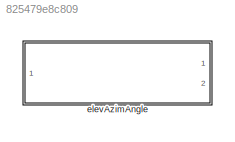
MODEL slx_825479e8c809
KIND library
CONFIG AbsTol = auto
CONFIG EnableMultiTasking = off
CONFIG FixedStep = auto
CONFIG MaxStep = auto
CONFIG MinStep = auto
CONFIG RelTol = 1e-3
CONFIG SampleTimeConstraint = Unconstrained
CONFIG Solver = VariableStepAuto
CONFIG SolverName = VariableStepAuto
CONFIG StartTime = 0.0
CONFIG StopTime = 10.0
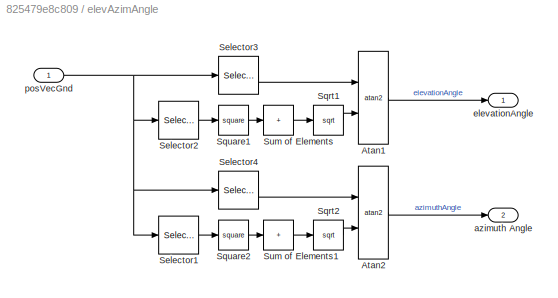
BLOCK [SubSystem] elevAzimAngle
  Ports = [1, 2]
  RequestExecContextInheritance = off
BLOCK [Trigonometry] elevAzimAngle/Atan1
  Operator = atan2
  Ports = [2, 1]
BLOCK [Trigonometry] elevAzimAngle/Atan2
  Operator = atan2
  Ports = [2, 1]
BLOCK [Selector] elevAzimAngle/Selector1
  IndexOptions = Index vector (dialog)
  Indices = 1
  InputPortWidth = 3
  OutputSizes = 1
  Ports = [1, 1]
BLOCK [Selector] elevAzimAngle/Selector2
  IndexOptions = Index vector (dialog)
  Indices = [1 2]
  InputPortWidth = 3
  OutputSizes = 1
  Ports = [1, 1]
BLOCK [Selector] elevAzimAngle/Selector3
  IndexOptions = Index vector (dialog)
  Indices = 3
  InputPortWidth = 3
  OutputSizes = 1
  Ports = [1, 1]
BLOCK [Selector] elevAzimAngle/Selector4
  IndexOptions = Index vector (dialog)
  Indices = 2
  InputPortWidth = 3
  OutputSizes = 1
  Ports = [1, 1]
BLOCK [Sqrt] elevAzimAngle/Sqrt1
BLOCK [Sqrt] elevAzimAngle/Sqrt2
BLOCK [Math] elevAzimAngle/Square1
  Operator = square
  Ports = [1, 1]
  SignedPower = on
BLOCK [Math] elevAzimAngle/Square2
  Operator = square
  Ports = [1, 1]
  SignedPower = on
BLOCK [Sum] elevAzimAngle/Sum of Elements
  IconShape = rectangular
  Inputs = +
  Ports = [1, 1]
BLOCK [Sum] elevAzimAngle/Sum of Elements1
  IconShape = rectangular
  Inputs = +
  Ports = [1, 1]
BLOCK [Outport] elevAzimAngle/azimuth Angle
  Port = 2
BLOCK [Outport] elevAzimAngle/elevationAngle
BLOCK [Inport] elevAzimAngle/posVecGnd
LINE elevAzimAngle/Atan1:1 -> elevAzimAngle/elevationAngle:1
LINE elevAzimAngle/Atan2:1 -> elevAzimAngle/azimuth Angle:1
LINE elevAzimAngle/Selector1:1 -> elevAzimAngle/Square2:1
LINE elevAzimAngle/Selector2:1 -> elevAzimAngle/Square1:1
LINE elevAzimAngle/Selector3:1 -> elevAzimAngle/Atan1:1
LINE elevAzimAngle/Selector4:1 -> elevAzimAngle/Atan2:1
LINE elevAzimAngle/Sqrt1:1 -> elevAzimAngle/Atan1:2
LINE elevAzimAngle/Sqrt2:1 -> elevAzimAngle/Atan2:2
LINE elevAzimAngle/Square1:1 -> elevAzimAngle/Sum of Elements:1
LINE elevAzimAngle/Square2:1 -> elevAzimAngle/Sum of Elements1:1
LINE elevAzimAngle/Sum of Elements1:1 -> elevAzimAngle/Sqrt2:1
LINE elevAzimAngle/Sum of Elements:1 -> elevAzimAngle/Sqrt1:1
NET elevAzimAngle/posVecGnd:1 -> elevAzimAngle/Selector1:1, elevAzimAngle/Selector2:1, elevAzimAngle/Selector3:1, elevAzimAngle/Selector4:1
note: NET lines group one-source signal fan-out (src -> all destinations, sorted); 1:1 wires keep LINE
